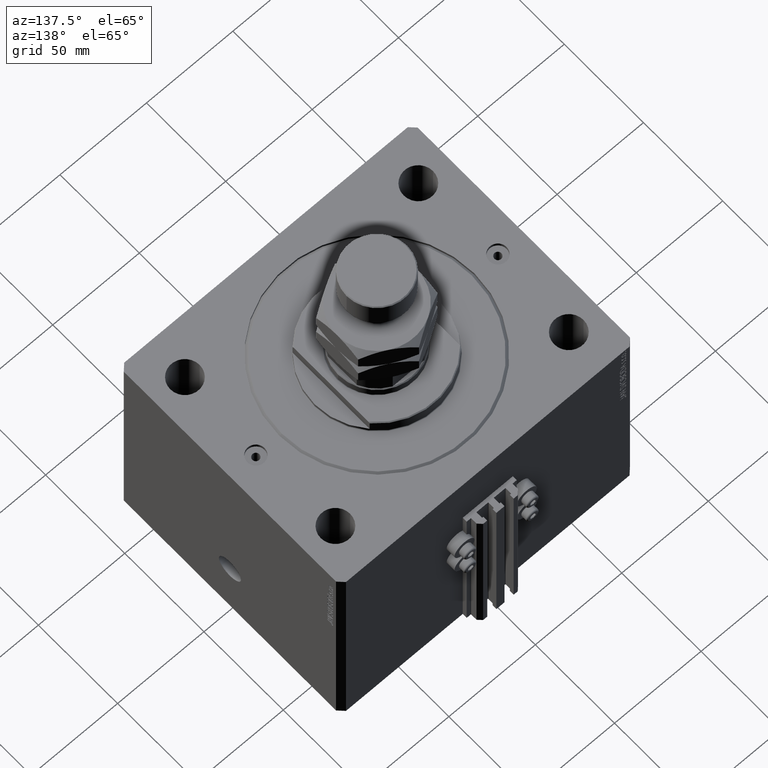
[diagram: clean part render]
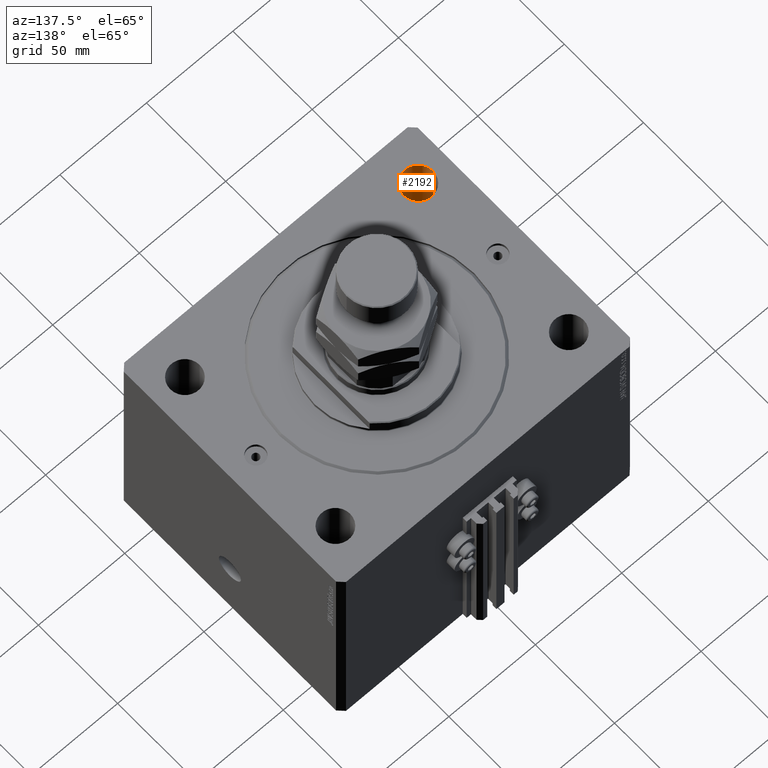
[diagram: same view with one face highlighted and labeled with its STEP entity id]
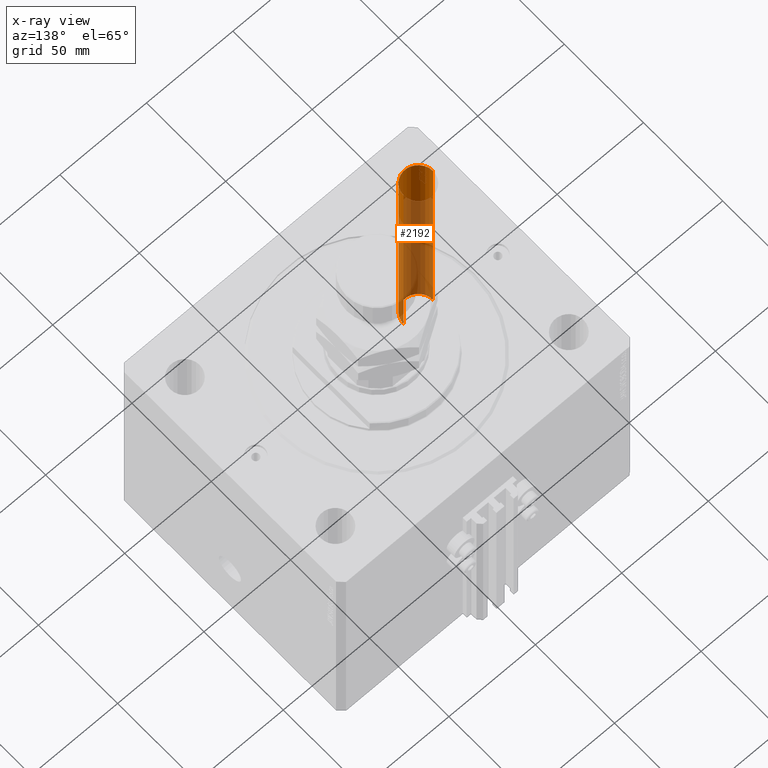
[diagram: x-ray of the same camera — body ghosted, the highlighted face saturated]
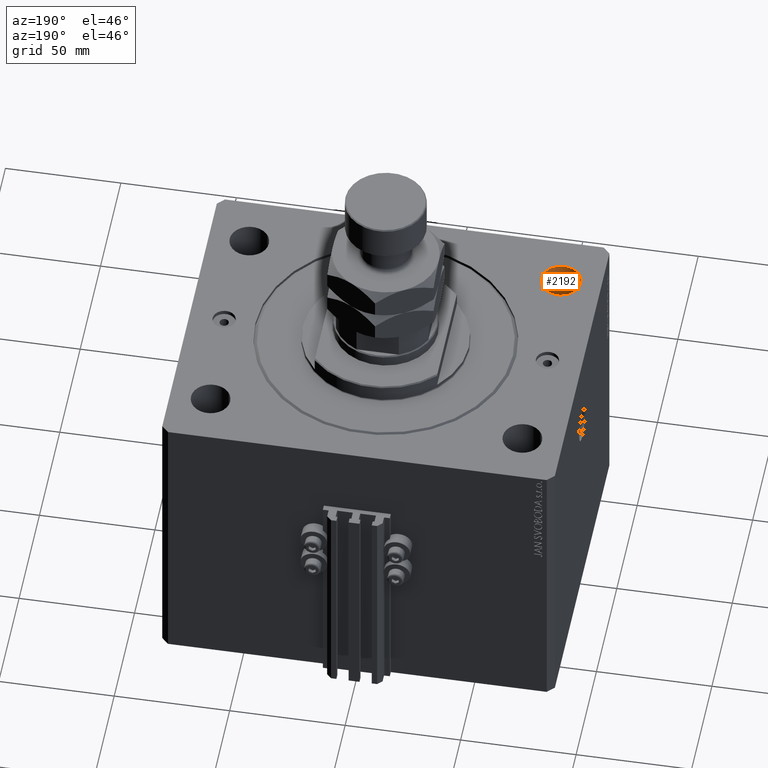
[diagram: same view with one face highlighted and labeled with its STEP entity id]
A machine part, auxiliary view. The second image highlights one B-rep face of the part: STEP entity #2192.
The next image is the same camera in x-ray: the body ghosted, the highlighted face saturated — about 74% of this face is hidden behind the body in this view.
A second angle (auxiliary view) of the same face is appended — the face is thin or edge-on in the first view.
In plain terms, the highlighted cylindrical surface (edge-blend (fillet) strip) has radius 8.5 mm, axis along (0, 0, 1).
Its self-contained STEP definition (entity closure, byte-faithful):
#1054 = EDGE_CURVE ( 'NONE', #16568, #46837, #10149, .T. ) ;
#2192 = ADVANCED_FACE ( 'NONE', ( #47044 ), #31950, .F. ) ;
#2703 = DIRECTION ( 'NONE',  ( -0.000000000000000000, -0.000000000000000000, 1.000000000000000000 ) ) ;
#3379 = CARTESIAN_POINT ( 'NONE',  ( -59.00000000000000000, -47.50000000000001421, 0.000000000000000000 ) ) ;
#4990 = CIRCLE ( 'NONE', #36632, 8.499999999999992895 ) ;
#5375 = EDGE_CURVE ( 'NONE', #39947, #46449, #8903, .T. ) ;
#7225 = AXIS2_PLACEMENT_3D ( 'NONE', #39379, #39135, #20331 ) ;
#7511 = DIRECTION ( 'NONE',  ( 0.000000000000000000, 0.000000000000000000, 1.000000000000000000 ) ) ;
#8903 = LINE ( 'NONE', #16090, #37362 ) ;
#10149 = LINE ( 'NONE', #48006, #30897 ) ;
#11990 = ORIENTED_EDGE ( 'NONE', *, *, #1054, .T. ) ;
#13016 = CARTESIAN_POINT ( 'NONE',  ( -67.49999999999998579, -47.50000000000001421, -130.0000000000000000 ) ) ;
#13057 = CIRCLE ( 'NONE', #43106, 8.499999999999992895 ) ;
#16090 = CARTESIAN_POINT ( 'NONE',  ( -59.00000000000000000, -47.50000000000001421, -154.0416305603426395 ) ) ;
#16544 = CARTESIAN_POINT ( 'NONE',  ( -75.99999999999998579, -47.50000000000001421, -130.0000000000000000 ) ) ;
#16568 = VERTEX_POINT ( 'NONE', #16544 ) ;
#16954 = EDGE_CURVE ( 'NONE', #39947, #16568, #13057, .T. ) ;
#17232 = DIRECTION ( 'NONE',  ( -0.000000000000000000, -0.000000000000000000, -1.000000000000000000 ) ) ;
#20331 = DIRECTION ( 'NONE',  ( 1.000000000000000000, 0.000000000000000000, 0.000000000000000000 ) ) ;
#24261 = DIRECTION ( 'NONE',  ( -0.000000000000000000, -0.000000000000000000, 1.000000000000000000 ) ) ;
#25163 = ORIENTED_EDGE ( 'NONE', *, *, #5375, .F. ) ;
#28115 = DIRECTION ( 'NONE',  ( 1.000000000000000000, 0.000000000000000000, 0.000000000000000000 ) ) ;
#30897 = VECTOR ( 'NONE', #2703, 1000.000000000000000 ) ;
#31950 = CYLINDRICAL_SURFACE ( 'NONE', #7225, 8.499999999999992895 ) ;
#33752 = CARTESIAN_POINT ( 'NONE',  ( -67.49999999999998579, -47.50000000000001421, 0.000000000000000000 ) ) ;
#35056 = ORIENTED_EDGE ( 'NONE', *, *, #16954, .T. ) ;
#36632 = AXIS2_PLACEMENT_3D ( 'NONE', #33752, #7511, #42146 ) ;
#37226 = EDGE_CURVE ( 'NONE', #46837, #46449, #4990, .T. ) ;
#37362 = VECTOR ( 'NONE', #24261, 1000.000000000000000 ) ;
#37897 = CARTESIAN_POINT ( 'NONE',  ( -59.00000000000000000, -47.50000000000001421, -130.0000000000000000 ) ) ;
#39135 = DIRECTION ( 'NONE',  ( -0.000000000000000000, -0.000000000000000000, 1.000000000000000000 ) ) ;
#39379 = CARTESIAN_POINT ( 'NONE',  ( -67.49999999999998579, -47.50000000000001421, -154.0416305603426395 ) ) ;
#39947 = VERTEX_POINT ( 'NONE', #37897 ) ;
#42146 = DIRECTION ( 'NONE',  ( 1.000000000000000000, 0.000000000000000000, 0.000000000000000000 ) ) ;
#43106 = AXIS2_PLACEMENT_3D ( 'NONE', #13016, #17232, #28115 ) ;
#43693 = CARTESIAN_POINT ( 'NONE',  ( -75.99999999999998579, -47.50000000000001421, 0.000000000000000000 ) ) ;
#44698 = ORIENTED_EDGE ( 'NONE', *, *, #37226, .T. ) ;
#46147 = EDGE_LOOP ( 'NONE', ( #35056, #11990, #44698, #25163 ) ) ;
#46449 = VERTEX_POINT ( 'NONE', #3379 ) ;
#46837 = VERTEX_POINT ( 'NONE', #43693 ) ;
#47044 = FACE_OUTER_BOUND ( 'NONE', #46147, .T. ) ;
#48006 = CARTESIAN_POINT ( 'NONE',  ( -75.99999999999998579, -47.50000000000001421, -154.0416305603426395 ) ) ;